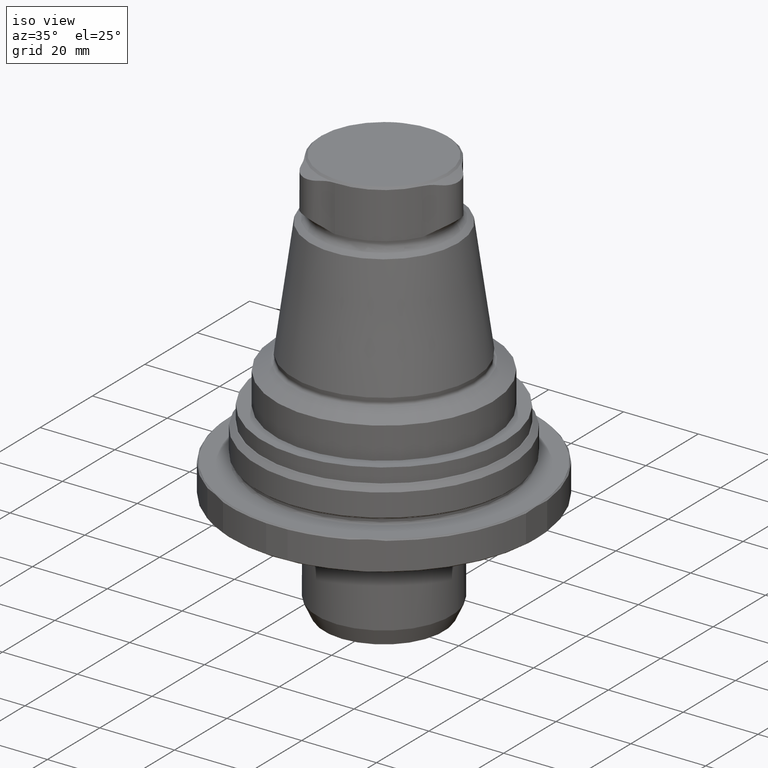
[diagram: clean part render]
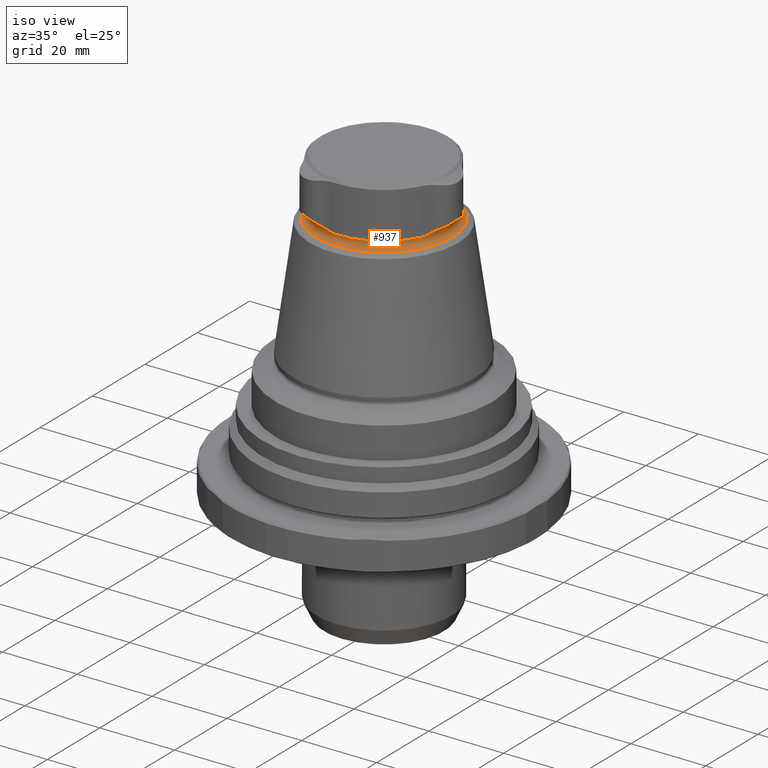
[diagram: same view with one face highlighted and labeled with its STEP entity id]
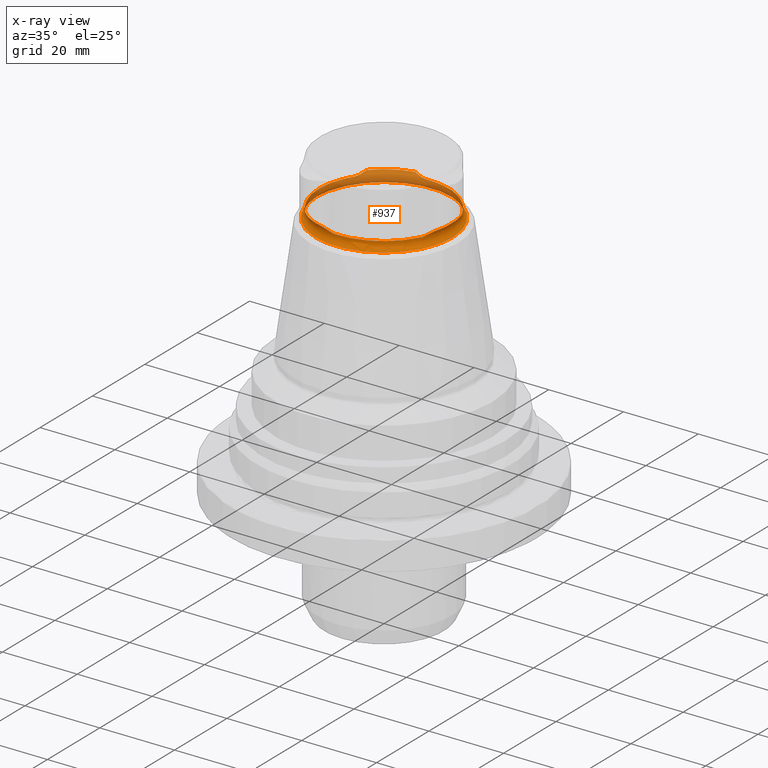
[diagram: x-ray of the same camera — body ghosted, the highlighted face saturated]
A machine part, iso view. The second image highlights one B-rep face of the part: STEP entity #937.
The next image is the same camera in x-ray: the body ghosted, the highlighted face saturated — about 40% of this face is hidden behind the body in this view.
In plain terms, the highlighted toroidal blend (fillet) surface has major radius 19.28 mm and minor (blend) radius 2 mm.
Its self-contained STEP definition (entity closure, byte-faithful):
#79=TOROIDAL_SURFACE('',#1058,19.28,2.);
#150=CIRCLE('',#1042,17.9944247806269);
#151=CIRCLE('',#1045,17.38);
#152=CIRCLE('',#1048,17.9944247806269);
#153=CIRCLE('',#1051,17.38);
#154=CIRCLE('',#1054,17.9944247806269);
#155=CIRCLE('',#1057,17.38);
#156=CIRCLE('',#1059,18.28);
#377=ORIENTED_EDGE('',*,*,#525,.F.);
#378=ORIENTED_EDGE('',*,*,#524,.T.);
#379=ORIENTED_EDGE('',*,*,#523,.T.);
#380=ORIENTED_EDGE('',*,*,#520,.T.);
#381=ORIENTED_EDGE('',*,*,#519,.T.);
#382=ORIENTED_EDGE('',*,*,#517,.T.);
#383=ORIENTED_EDGE('',*,*,#515,.T.);
#384=ORIENTED_EDGE('',*,*,#512,.T.);
#385=ORIENTED_EDGE('',*,*,#511,.T.);
#386=ORIENTED_EDGE('',*,*,#509,.T.);
#387=ORIENTED_EDGE('',*,*,#507,.T.);
#388=ORIENTED_EDGE('',*,*,#504,.T.);
#389=ORIENTED_EDGE('',*,*,#503,.T.);
#503=EDGE_CURVE('',#605,#606,#657,.T.);
#504=EDGE_CURVE('',#607,#605,#150,.T.);
#507=EDGE_CURVE('',#608,#607,#659,.T.);
#509=EDGE_CURVE('',#609,#608,#151,.T.);
#511=EDGE_CURVE('',#610,#609,#661,.T.);
#512=EDGE_CURVE('',#611,#610,#152,.T.);
#515=EDGE_CURVE('',#612,#611,#663,.T.);
#517=EDGE_CURVE('',#613,#612,#153,.T.);
#519=EDGE_CURVE('',#614,#613,#665,.T.);
#520=EDGE_CURVE('',#615,#614,#154,.T.);
#523=EDGE_CURVE('',#616,#615,#667,.T.);
#524=EDGE_CURVE('',#606,#616,#155,.T.);
#525=EDGE_CURVE('',#617,#617,#156,.T.);
#605=VERTEX_POINT('',#1688);
#606=VERTEX_POINT('',#1690);
#607=VERTEX_POINT('',#1698);
#608=VERTEX_POINT('',#1705);
#609=VERTEX_POINT('',#1713);
#610=VERTEX_POINT('',#1720);
#611=VERTEX_POINT('',#1728);
#612=VERTEX_POINT('',#1735);
#613=VERTEX_POINT('',#1743);
#614=VERTEX_POINT('',#1750);
#615=VERTEX_POINT('',#1758);
#616=VERTEX_POINT('',#1765);
#617=VERTEX_POINT('',#1775);
#657=B_SPLINE_CURVE_WITH_KNOTS('',3,(#1691,#1692,#1693,#1694,#1695),
 .UNSPECIFIED.,.F.,.F.,(4,1,4),(6.35686144103671E-7,0.0015978311918001,
0.00319502669745609),.UNSPECIFIED.);
#659=B_SPLINE_CURVE_WITH_KNOTS('',3,(#1706,#1707,#1708,#1709,#1710),
 .UNSPECIFIED.,.F.,.F.,(4,1,4),(1.97137655947821E-7,0.00159333802635267,
0.00318647891504939),.UNSPECIFIED.);
#661=B_SPLINE_CURVE_WITH_KNOTS('',3,(#1721,#1722,#1723,#1724,#1725),
 .UNSPECIFIED.,.F.,.F.,(4,1,4),(6.35686110278571E-7,0.00159783085864817,
0.00319502603118605),.UNSPECIFIED.);
#663=B_SPLINE_CURVE_WITH_KNOTS('',3,(#1736,#1737,#1738,#1739,#1740),
 .UNSPECIFIED.,.F.,.F.,(4,1,4),(2.20521440774518E-7,0.00159336113449156,
0.00318650174754235),.UNSPECIFIED.);
#665=B_SPLINE_CURVE_WITH_KNOTS('',3,(#1751,#1752,#1753,#1754,#1755),
 .UNSPECIFIED.,.F.,.F.,(4,1,4),(6.3568605650328E-7,0.00159783032874763,
0.00319502497143876),.UNSPECIFIED.);
#667=B_SPLINE_CURVE_WITH_KNOTS('',3,(#1766,#1767,#1768,#1769,#1770),
 .UNSPECIFIED.,.F.,.F.,(4,1,4),(2.35223058471433E-7,0.00159337566279852,
0.00318651610253857),.UNSPECIFIED.);
#740=EDGE_LOOP('',(#377));
#741=EDGE_LOOP('',(#378,#379,#380,#381,#382,#383,#384,#385,#386,#387,#388,
#389));
#835=FACE_BOUND('',#740,.T.);
#836=FACE_BOUND('',#741,.T.);
#937=ADVANCED_FACE('',(#835,#836),#79,.F.);
#1042=AXIS2_PLACEMENT_3D('',#1697,#1263,#1264);
#1045=AXIS2_PLACEMENT_3D('',#1714,#1271,#1272);
#1048=AXIS2_PLACEMENT_3D('',#1727,#1277,#1278);
#1051=AXIS2_PLACEMENT_3D('',#1744,#1285,#1286);
#1054=AXIS2_PLACEMENT_3D('',#1757,#1291,#1292);
#1057=AXIS2_PLACEMENT_3D('',#1772,#1298,#1299);
#1058=AXIS2_PLACEMENT_3D('',#1773,#1300,#1301);
#1059=AXIS2_PLACEMENT_3D('',#1774,#1302,#1303);
#1263=DIRECTION('',(1.22461692971323E-16,-7.49836836562635E-33,-1.));
#1264=DIRECTION('',(-1.,6.12303176911189E-17,-1.22461692971323E-16));
#1271=DIRECTION('',(1.22461692971323E-16,-7.49836836562635E-33,-1.));
#1272=DIRECTION('',(-1.,6.12303176911189E-17,-1.22461692971323E-16));
#1277=DIRECTION('',(1.22461692971323E-16,-7.49836836562635E-33,-1.));
#1278=DIRECTION('',(-1.,6.12303176911189E-17,-1.22461692971323E-16));
#1285=DIRECTION('',(1.22461692971323E-16,-7.49836836562635E-33,-1.));
#1286=DIRECTION('',(-1.,6.12303176911189E-17,-1.22461692971323E-16));
#1291=DIRECTION('',(1.22461692971323E-16,-7.49836836562635E-33,-1.));
#1292=DIRECTION('',(-1.,6.12303176911189E-17,-1.22461692971323E-16));
#1298=DIRECTION('',(1.22461692971323E-16,-7.49836836562635E-33,-1.));
#1299=DIRECTION('',(-1.,6.12303176911189E-17,-1.22461692971323E-16));
#1300=DIRECTION('',(1.22461692971323E-16,-7.49836836562635E-33,-1.));
#1301=DIRECTION('',(-1.,6.12303176911189E-17,-1.22461692971323E-16));
#1302=DIRECTION('',(1.22461692971323E-16,-7.49836836562635E-33,-1.));
#1303=DIRECTION('',(-1.,6.12303176911189E-17,-1.22461692971323E-16));
#1688=CARTESIAN_POINT('',(-13.1844579384725,-12.2461990860139,61.0160728241915));
#1690=CARTESIAN_POINT('',(-14.5433864753958,-9.51600282825072,60.1084837377934));
#1691=CARTESIAN_POINT('',(-13.1844579384718,-12.2461990860133,61.0160728241922));
#1692=CARTESIAN_POINT('',(-13.3557624744756,-11.7684289393792,60.8485594541288));
#1693=CARTESIAN_POINT('',(-13.7430631802596,-10.8589171321317,60.4659393934881));
#1694=CARTESIAN_POINT('',(-14.2485410599591,-9.96661753534753,60.1084837377905));
#1695=CARTESIAN_POINT('',(-14.5433864753951,-9.51600282825074,60.1084837377904));
#1697=CARTESIAN_POINT('',(1.46769010863797E-15,-8.98671316240156E-32,61.0160728241915));
#1698=CARTESIAN_POINT('',(-4.0132905390536,-17.5411750528516,61.0160728241915));
#1705=CARTESIAN_POINT('',(-0.969406954051809,-17.3529435588731,60.1084837377934));
#1706=CARTESIAN_POINT('',(-0.96940695405181,-17.3529435588731,60.1084837377934));
#1707=CARTESIAN_POINT('',(-1.50816065140855,-17.3228465566575,60.1084837377934));
#1708=CARTESIAN_POINT('',(-2.5276528809224,-17.3310864051679,60.4643411911177));
#1709=CARTESIAN_POINT('',(-3.51330235117727,-17.4505398563382,60.8483666425664));
#1710=CARTESIAN_POINT('',(-4.0132905390535,-17.541175052851,61.016072824192));
#1713=CARTESIAN_POINT('',(15.5127934294476,-7.83694073062241,60.1084837377934));
#1714=CARTESIAN_POINT('',(-7.64773027486394E-17,4.68272954345907E-33,60.1084837377934));
#1720=CARTESIAN_POINT('',(17.1977484775261,-5.29497596683764,61.0160728241915));
#1721=CARTESIAN_POINT('',(17.1977484775253,-5.29497596683733,61.0160728241922));
#1722=CARTESIAN_POINT('',(16.8696397123536,-5.6822150599481,60.8485594801569));
#1723=CARTESIAN_POINT('',(16.2756298563554,-6.47238305001316,60.4659395692859));
#1724=CARTESIAN_POINT('',(15.7556146861175,-7.35628939938424,60.1084837377908));
#1725=CARTESIAN_POINT('',(15.5127934294473,-7.83694073062188,60.1084837377907));
#1727=CARTESIAN_POINT('',(1.46769010863797E-15,-8.98671316240156E-32,61.0160728241915));
#1728=CARTESIAN_POINT('',(17.1977484775261,5.29497596683763,61.0160728241915));
#1735=CARTESIAN_POINT('',(15.5127934294476,7.8369407306223,60.1084837377934));
#1736=CARTESIAN_POINT('',(15.5127934294476,7.8369407306223,60.1084837377934));
#1737=CARTESIAN_POINT('',(15.7561051581389,7.35531853697712,60.1084837377934));
#1738=CARTESIAN_POINT('',(16.2729875744631,6.47653147093607,60.464341093761));
#1739=CARTESIAN_POINT('',(16.8692619580383,5.68266089149592,60.8483666206682));
#1740=CARTESIAN_POINT('',(17.1977484775256,5.29497596683744,61.016072824192));
#1743=CARTESIAN_POINT('',(-0.969406954051804,17.3529435588731,60.1084837377934));
#1744=CARTESIAN_POINT('',(-7.64773027486394E-17,4.68272954345907E-33,60.1084837377934));
#1750=CARTESIAN_POINT('',(-4.01329053905358,17.5411750528516,61.0160728241915));
#1751=CARTESIAN_POINT('',(-4.01329053905341,17.5411750528507,61.0160728241922));
#1752=CARTESIAN_POINT('',(-3.51387738791884,17.4506440959366,60.8485595215557));
#1753=CARTESIAN_POINT('',(-2.53256722910757,17.3313005024,60.4659398488993));
#1754=CARTESIAN_POINT('',(-1.50707448211518,17.3229072345509,60.1084837377914));
#1755=CARTESIAN_POINT('',(-0.969406954052059,17.3529435588727,60.1084837377913));
#1757=CARTESIAN_POINT('',(1.46769010863797E-15,-8.98671316240156E-32,61.0160728241915));
#1758=CARTESIAN_POINT('',(-13.1844579384725,12.2461990860139,61.0160728241915));
#1765=CARTESIAN_POINT('',(-14.5433864753958,9.51600282825071,60.1084837377934));
#1766=CARTESIAN_POINT('',(-14.5433864753958,9.51600282825071,60.1084837377934));
#1767=CARTESIAN_POINT('',(-14.2479455533474,9.96752765306905,60.1084837377934));
#1768=CARTESIAN_POINT('',(-13.7453345115463,10.8545549561262,60.4643410325569));
#1769=CARTESIAN_POINT('',(-13.3559596862253,11.7678789137431,60.8483666069014));
#1770=CARTESIAN_POINT('',(-13.1844579384721,12.2461990860136,61.016072824192));
#1772=CARTESIAN_POINT('',(-7.64773027486394E-17,4.68272954345907E-33,60.1084837377934));
#1773=CARTESIAN_POINT('',(0.,0.,59.4839839379536));
#1774=CARTESIAN_POINT('',(1.86742218163645E-15,-1.14342853445042E-31,57.7519331303847));
#1775=CARTESIAN_POINT('',(-18.28,1.11929020739365E-15,57.7519331303847));